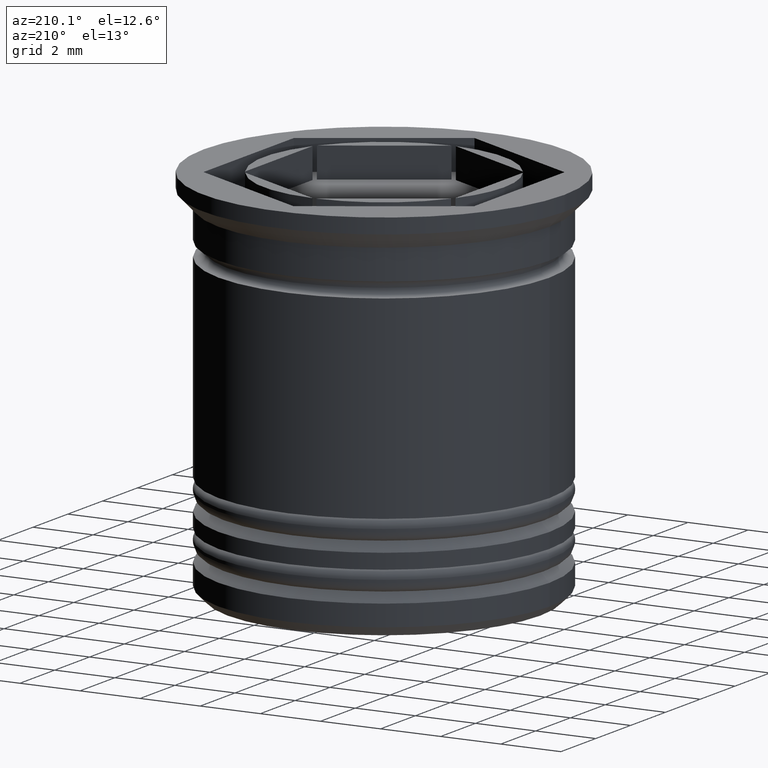
[diagram: clean part render]
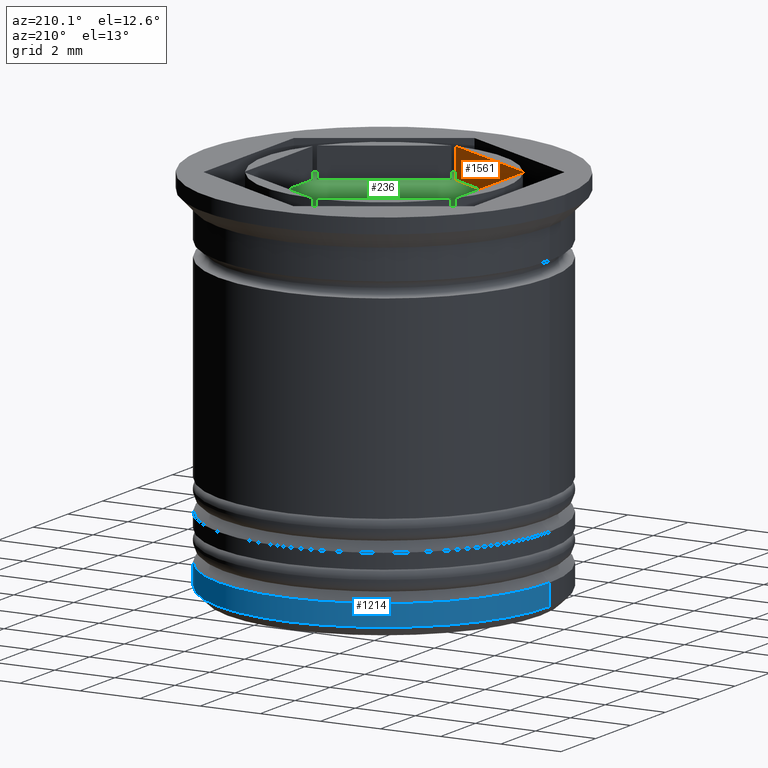
[diagram: same view with three faces highlighted in distinct colors, each labeled with its STEP entity id]
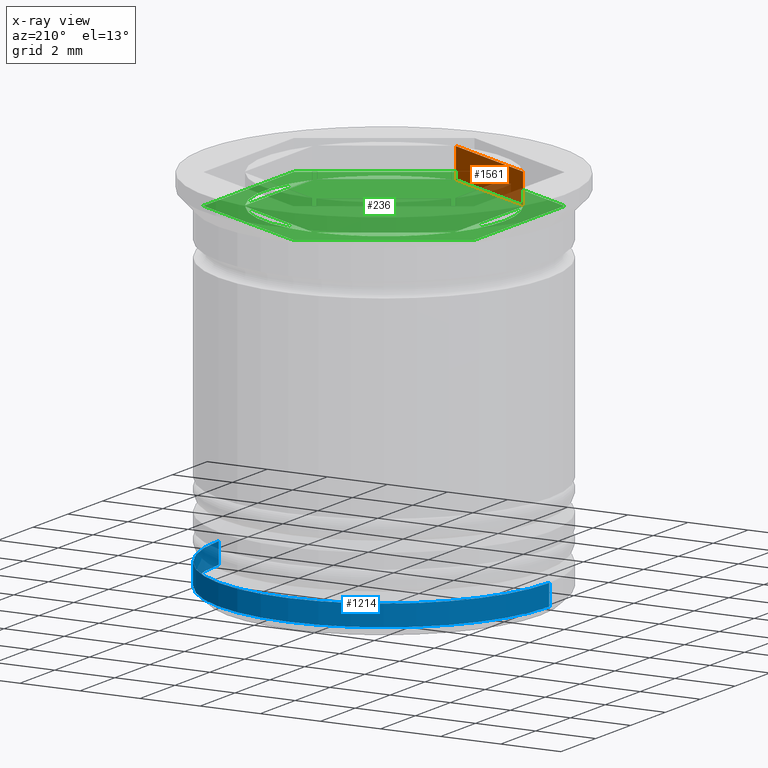
[diagram: x-ray of the same camera — body ghosted, the three highlighted faces saturated]
A machine part, auxiliary view with three faces highlighted in distinct colors.
The next image is the same camera in x-ray (body ghosted, the three faces saturated) — at least one of them is partly hidden behind the body in this view.
Their STEP definitions:

[orange] entity #1561 — the highlighted planar face has unit normal (-0.5, -0.866, 0).
#32 = EDGE_CURVE ( 'NONE', #1257, #59, #1673, .T. ) ;
#59 = VERTEX_POINT ( 'NONE', #583 ) ;
#275 = DIRECTION ( 'NONE',  ( 0.000000000000000000, 0.000000000000000000, 1.000000000000000000 ) ) ;
#341 = DIRECTION ( 'NONE',  ( -0.8660254037844387076, 0.5000000000000001110, 0.000000000000000000 ) ) ;
#406 = DIRECTION ( 'NONE',  ( -0.5000000000000001110, -0.8660254037844387076, 0.000000000000000000 ) ) ;
#513 = LINE ( 'NONE', #1285, #1769 ) ;
#575 = CARTESIAN_POINT ( 'NONE',  ( -0.07294901687515718824, -3.999334749797389232, 11.31370849898475761 ) ) ;
#583 = CARTESIAN_POINT ( 'NONE',  ( -0.07294901687515849276, -3.999334749797389232, 0.000000000000000000 ) ) ;
#589 = VECTOR ( 'NONE', #275, 1000.000000000000000 ) ;
#713 = ORIENTED_EDGE ( 'NONE', *, *, #32, .F. ) ;
#751 = PLANE ( 'NONE',  #1105 ) ;
#768 = CARTESIAN_POINT ( 'NONE',  ( -3.427050983124842354, -2.062843076693679834, 11.31370849898475761 ) ) ;
#812 = CARTESIAN_POINT ( 'NONE',  ( -3.427050983124841466, -2.062843076693681166, 0.000000000000000000 ) ) ;
#866 = EDGE_LOOP ( 'NONE', ( #1559, #713, #1429, #1347 ) ) ;
#898 = CARTESIAN_POINT ( 'NONE',  ( -3.499999999999999556, -2.020725942163690281, -11.69267662156362597 ) ) ;
#954 = CARTESIAN_POINT ( 'NONE',  ( -0.07294901687515892297, -3.999334749797390121, -1.000000000000000888 ) ) ;
#969 = DIRECTION ( 'NONE',  ( 0.8660254037844387076, -0.5000000000000001110, 0.000000000000000000 ) ) ;
#1059 = DIRECTION ( 'NONE',  ( -0.000000000000000000, -0.000000000000000000, -1.000000000000000000 ) ) ;
#1105 = AXIS2_PLACEMENT_3D ( 'NONE', #898, #406, #1964 ) ;
#1137 = CARTESIAN_POINT ( 'NONE',  ( -3.499999999999999556, -2.020725942163690281, -1.000000000000000888 ) ) ;
#1257 = VERTEX_POINT ( 'NONE', #954 ) ;
#1262 = EDGE_CURVE ( 'NONE', #1484, #1711, #1708, .T. ) ;
#1285 = CARTESIAN_POINT ( 'NONE',  ( -1.749999999999999778, -3.031088913245534755, 0.000000000000000000 ) ) ;
#1347 = ORIENTED_EDGE ( 'NONE', *, *, #1262, .F. ) ;
#1361 = EDGE_CURVE ( 'NONE', #1257, #1711, #1471, .T. ) ;
#1429 = ORIENTED_EDGE ( 'NONE', *, *, #1361, .T. ) ;
#1471 = LINE ( 'NONE', #1137, #1762 ) ;
#1484 = VERTEX_POINT ( 'NONE', #812 ) ;
#1559 = ORIENTED_EDGE ( 'NONE', *, *, #1885, .T. ) ;
#1561 = ADVANCED_FACE ( 'NONE', ( #1955 ), #751, .F. ) ;
#1673 = LINE ( 'NONE', #575, #589 ) ;
#1708 = LINE ( 'NONE', #768, #1852 ) ;
#1711 = VERTEX_POINT ( 'NONE', #1878 ) ;
#1762 = VECTOR ( 'NONE', #341, 999.9999999999998863 ) ;
#1769 = VECTOR ( 'NONE', #969, 999.9999999999998863 ) ;
#1852 = VECTOR ( 'NONE', #1059, 1000.000000000000000 ) ;
#1878 = CARTESIAN_POINT ( 'NONE',  ( -3.427050983124842354, -2.062843076693682498, -1.000000000000000888 ) ) ;
#1885 = EDGE_CURVE ( 'NONE', #1484, #59, #513, .T. ) ;
#1955 = FACE_OUTER_BOUND ( 'NONE', #866, .T. ) ;
#1964 = DIRECTION ( 'NONE',  ( 0.8660254037844385966, -0.5000000000000000000, 0.000000000000000000 ) ) ;

[blue] entity #1214 — the highlighted cylindrical surface (partial cylindrical patch) has radius 5.5 mm, axis along (-0, -0, 1).
#36 = CARTESIAN_POINT ( 'NONE',  ( 5.500000000000001776, 0.000000000000000000, -12.19999999999999574 ) ) ;
#43 = VERTEX_POINT ( 'NONE', #887 ) ;
#73 = DIRECTION ( 'NONE',  ( -0.000000000000000000, -0.000000000000000000, 1.000000000000000000 ) ) ;
#84 = LINE ( 'NONE', #1609, #934 ) ;
#120 = CARTESIAN_POINT ( 'NONE',  ( 5.500000000000001776, 0.000000000000000000, 0.000000000000000000 ) ) ;
#147 = CARTESIAN_POINT ( 'NONE',  ( 0.000000000000000000, 0.000000000000000000, -11.50000000000000533 ) ) ;
#149 = ORIENTED_EDGE ( 'NONE', *, *, #672, .T. ) ;
#294 = CIRCLE ( 'NONE', #326, 5.500000000000001776 ) ;
#301 = FACE_OUTER_BOUND ( 'NONE', #1584, .T. ) ;
#326 = AXIS2_PLACEMENT_3D ( 'NONE', #147, #607, #1386 ) ;
#332 = DIRECTION ( 'NONE',  ( -0.000000000000000000, -0.000000000000000000, 1.000000000000000000 ) ) ;
#370 = ORIENTED_EDGE ( 'NONE', *, *, #477, .F. ) ;
#431 = ORIENTED_EDGE ( 'NONE', *, *, #1749, .T. ) ;
#477 = EDGE_CURVE ( 'NONE', #1240, #43, #894, .T. ) ;
#559 = CIRCLE ( 'NONE', #817, 5.500000000000001776 ) ;
#607 = DIRECTION ( 'NONE',  ( 0.000000000000000000, 0.000000000000000000, -1.000000000000000000 ) ) ;
#620 = VERTEX_POINT ( 'NONE', #777 ) ;
#634 = CARTESIAN_POINT ( 'NONE',  ( 0.000000000000000000, 0.000000000000000000, 0.000000000000000000 ) ) ;
#672 = EDGE_CURVE ( 'NONE', #1907, #620, #84, .T. ) ;
#777 = CARTESIAN_POINT ( 'NONE',  ( -5.500000000000001776, 6.735557395310443995E-16, -11.50000000000000533 ) ) ;
#817 = AXIS2_PLACEMENT_3D ( 'NONE', #1331, #1023, #893 ) ;
#887 = CARTESIAN_POINT ( 'NONE',  ( 5.500000000000001776, 0.000000000000000000, -11.50000000000000533 ) ) ;
#893 = DIRECTION ( 'NONE',  ( -1.000000000000000000, 0.000000000000000000, 0.000000000000000000 ) ) ;
#894 = LINE ( 'NONE', #120, #1592 ) ;
#920 = DIRECTION ( 'NONE',  ( 1.000000000000000000, 0.000000000000000000, 0.000000000000000000 ) ) ;
#934 = VECTOR ( 'NONE', #73, 1000.000000000000000 ) ;
#1023 = DIRECTION ( 'NONE',  ( -0.000000000000000000, -0.000000000000000000, 1.000000000000000000 ) ) ;
#1027 = ORIENTED_EDGE ( 'NONE', *, *, #1512, .T. ) ;
#1212 = DIRECTION ( 'NONE',  ( -0.000000000000000000, -0.000000000000000000, 1.000000000000000000 ) ) ;
#1214 = ADVANCED_FACE ( 'NONE', ( #301 ), #1848, .T. ) ;
#1240 = VERTEX_POINT ( 'NONE', #36 ) ;
#1331 = CARTESIAN_POINT ( 'NONE',  ( 0.000000000000000000, 0.000000000000000000, -12.19999999999999574 ) ) ;
#1386 = DIRECTION ( 'NONE',  ( -1.000000000000000000, 0.000000000000000000, 0.000000000000000000 ) ) ;
#1433 = CARTESIAN_POINT ( 'NONE',  ( -5.500000000000001776, 6.735557395310443995E-16, -12.19999999999999574 ) ) ;
#1512 = EDGE_CURVE ( 'NONE', #1240, #1907, #559, .T. ) ;
#1584 = EDGE_LOOP ( 'NONE', ( #1027, #149, #431, #370 ) ) ;
#1592 = VECTOR ( 'NONE', #1212, 1000.000000000000000 ) ;
#1609 = CARTESIAN_POINT ( 'NONE',  ( -5.500000000000001776, 6.735557395310443995E-16, 0.000000000000000000 ) ) ;
#1749 = EDGE_CURVE ( 'NONE', #620, #43, #294, .T. ) ;
#1848 = CYLINDRICAL_SURFACE ( 'NONE', #1953, 5.500000000000001776 ) ;
#1907 = VERTEX_POINT ( 'NONE', #1433 ) ;
#1953 = AXIS2_PLACEMENT_3D ( 'NONE', #634, #332, #920 ) ;

[green] entity #236 — the highlighted planar face has unit normal (0, 0, 1).
#4 = FACE_BOUND ( 'NONE', #478, .T. ) ;
#5 = EDGE_LOOP ( 'NONE', ( #1591, #317 ) ) ;
#47 = VERTEX_POINT ( 'NONE', #129 ) ;
#55 = CARTESIAN_POINT ( 'NONE',  ( 4.500000000000000888, 2.598076211353317344, -1.000000000000000000 ) ) ;
#65 = CARTESIAN_POINT ( 'NONE',  ( -3.427050983124842798, 2.062843076693678501, -1.000000000000000888 ) ) ;
#91 = VECTOR ( 'NONE', #868, 1000.000000000000114 ) ;
#101 = EDGE_CURVE ( 'NONE', #1411, #438, #1201, .T. ) ;
#112 = EDGE_CURVE ( 'NONE', #764, #1750, #793, .T. ) ;
#118 = VECTOR ( 'NONE', #1719, 999.9999999999998863 ) ;
#129 = CARTESIAN_POINT ( 'NONE',  ( 3.427050983124842354, 2.062843076693681166, -1.000000000000000888 ) ) ;
#138 = CARTESIAN_POINT ( 'NONE',  ( 3.500000000000000000, 2.020725942163690281, -1.000000000000000888 ) ) ;
#140 = DIRECTION ( 'NONE',  ( 0.8660254037844385966, -0.5000000000000000000, 0.000000000000000000 ) ) ;
#142 = AXIS2_PLACEMENT_3D ( 'NONE', #196, #206, #217 ) ;
#152 = EDGE_CURVE ( 'NONE', #1750, #764, #361, .T. ) ;
#164 = AXIS2_PLACEMENT_3D ( 'NONE', #1535, #1873, #476 ) ;
#196 = CARTESIAN_POINT ( 'NONE',  ( 0.000000000000000000, 0.000000000000000000, -1.000000000000000000 ) ) ;
#205 = VERTEX_POINT ( 'NONE', #1417 ) ;
#206 = DIRECTION ( 'NONE',  ( 0.000000000000000000, 0.000000000000000000, 1.000000000000000000 ) ) ;
#217 = DIRECTION ( 'NONE',  ( 1.000000000000000000, 0.000000000000000000, 0.000000000000000000 ) ) ;
#236 = ADVANCED_FACE ( 'NONE', ( #623, #1382, #1523, #4, #446, #1228, #1849 ), #1242, .T. ) ;
#253 = EDGE_CURVE ( 'NONE', #770, #400, #1913, .T. ) ;
#262 = CIRCLE ( 'NONE', #1139, 4.000000000000000000 ) ;
#282 = VERTEX_POINT ( 'NONE', #1472 ) ;
#291 = VECTOR ( 'NONE', #1213, 1000.000000000000227 ) ;
#292 = DIRECTION ( 'NONE',  ( 1.000000000000000000, 0.000000000000000000, 0.000000000000000000 ) ) ;
#306 = CARTESIAN_POINT ( 'NONE',  ( -4.500000000000000888, -2.598076211353316456, -1.000000000000000000 ) ) ;
#308 = EDGE_LOOP ( 'NONE', ( #1123, #1462 ) ) ;
#317 = ORIENTED_EDGE ( 'NONE', *, *, #112, .F. ) ;
#329 = CARTESIAN_POINT ( 'NONE',  ( -3.499999999999999556, 2.020725942163689837, -1.000000000000000888 ) ) ;
#330 = CARTESIAN_POINT ( 'NONE',  ( 4.500000000000000888, -2.598076211353316012, -1.000000000000000000 ) ) ;
#334 = VERTEX_POINT ( 'NONE', #1895 ) ;
#335 = DIRECTION ( 'NONE',  ( 0.8660254037844387076, -0.4999999999999998335, 0.000000000000000000 ) ) ;
#341 = DIRECTION ( 'NONE',  ( -0.8660254037844387076, 0.5000000000000001110, 0.000000000000000000 ) ) ;
#342 = DIRECTION ( 'NONE',  ( -3.219245568722483850E-16, -1.000000000000000000, 0.000000000000000000 ) ) ;
#361 = CIRCLE ( 'NONE', #164, 4.000000000000000000 ) ;
#364 = DIRECTION ( 'NONE',  ( 0.000000000000000000, 0.000000000000000000, 1.000000000000000000 ) ) ;
#365 = CARTESIAN_POINT ( 'NONE',  ( 3.427050983124842354, -2.062843076693682498, -1.000000000000000888 ) ) ;
#400 = VERTEX_POINT ( 'NONE', #1956 ) ;
#411 = DIRECTION ( 'NONE',  ( 0.000000000000000000, 0.000000000000000000, 1.000000000000000000 ) ) ;
#412 = CARTESIAN_POINT ( 'NONE',  ( -3.394223061414856671E-17, -5.196152422706632912, -1.000000000000000000 ) ) ;
#429 = CIRCLE ( 'NONE', #1371, 4.000000000000000000 ) ;
#438 = VERTEX_POINT ( 'NONE', #710 ) ;
#446 = FACE_BOUND ( 'NONE', #1230, .T. ) ;
#468 = DIRECTION ( 'NONE',  ( 0.000000000000000000, 0.000000000000000000, 1.000000000000000000 ) ) ;
#470 = ORIENTED_EDGE ( 'NONE', *, *, #1991, .T. ) ;
#476 = DIRECTION ( 'NONE',  ( 1.000000000000000000, 0.000000000000000000, 0.000000000000000000 ) ) ;
#478 = EDGE_LOOP ( 'NONE', ( #1226, #1959 ) ) ;
#529 = AXIS2_PLACEMENT_3D ( 'NONE', #1594, #364, #1932 ) ;
#531 = CARTESIAN_POINT ( 'NONE',  ( -4.500000000000000888, 2.598076211353315568, -1.000000000000000000 ) ) ;
#546 = EDGE_LOOP ( 'NONE', ( #1489, #548 ) ) ;
#548 = ORIENTED_EDGE ( 'NONE', *, *, #101, .F. ) ;
#549 = EDGE_CURVE ( 'NONE', #1754, #334, #1521, .T. ) ;
#551 = DIRECTION ( 'NONE',  ( 0.8660254037844385966, 0.5000000000000001110, 0.000000000000000000 ) ) ;
#555 = CARTESIAN_POINT ( 'NONE',  ( -4.000000000000000000, 0.000000000000000000, -1.000000000000000000 ) ) ;
#563 = AXIS2_PLACEMENT_3D ( 'NONE', #673, #1774, #1738 ) ;
#570 = LINE ( 'NONE', #412, #1334 ) ;
#577 = CARTESIAN_POINT ( 'NONE',  ( 4.500000000000000888, 2.598076211353317344, -1.000000000000000000 ) ) ;
#598 = EDGE_LOOP ( 'NONE', ( #1178, #1922 ) ) ;
#623 = FACE_BOUND ( 'NONE', #308, .T. ) ;
#642 = EDGE_CURVE ( 'NONE', #205, #1754, #649, .T. ) ;
#649 = LINE ( 'NONE', #531, #1037 ) ;
#673 = CARTESIAN_POINT ( 'NONE',  ( 0.000000000000000000, 0.000000000000000000, -1.000000000000000000 ) ) ;
#675 = VERTEX_POINT ( 'NONE', #55 ) ;
#692 = VERTEX_POINT ( 'NONE', #1286 ) ;
#702 = EDGE_CURVE ( 'NONE', #282, #675, #799, .T. ) ;
#710 = CARTESIAN_POINT ( 'NONE',  ( -0.07294901687515480126, 3.999334749797389232, -1.000000000000000888 ) ) ;
#711 = ORIENTED_EDGE ( 'NONE', *, *, #1481, .T. ) ;
#764 = VERTEX_POINT ( 'NONE', #365 ) ;
#770 = VERTEX_POINT ( 'NONE', #985 ) ;
#793 = LINE ( 'NONE', #943, #118 ) ;
#799 = LINE ( 'NONE', #330, #1007 ) ;
#829 = EDGE_CURVE ( 'NONE', #334, #282, #570, .T. ) ;
#834 = DIRECTION ( 'NONE',  ( -0.8660254037844384856, -0.5000000000000001110, 0.000000000000000000 ) ) ;
#868 = DIRECTION ( 'NONE',  ( -0.8660254037844387076, 0.4999999999999998335, 0.000000000000000000 ) ) ;
#878 = EDGE_CURVE ( 'NONE', #1691, #47, #1517, .T. ) ;
#889 = ORIENTED_EDGE ( 'NONE', *, *, #1859, .F. ) ;
#943 = CARTESIAN_POINT ( 'NONE',  ( -2.168404344971008868E-16, -4.041451884327380562, -1.000000000000000888 ) ) ;
#954 = CARTESIAN_POINT ( 'NONE',  ( -0.07294901687515892297, -3.999334749797390121, -1.000000000000000888 ) ) ;
#984 = CARTESIAN_POINT ( 'NONE',  ( 0.000000000000000000, 0.000000000000000000, -1.000000000000000000 ) ) ;
#985 = CARTESIAN_POINT ( 'NONE',  ( 3.500000000000000000, 1.936491673103707845, -1.000000000000000888 ) ) ;
#1001 = ORIENTED_EDGE ( 'NONE', *, *, #1467, .F. ) ;
#1003 = DIRECTION ( 'NONE',  ( 0.000000000000000000, 0.000000000000000000, 1.000000000000000000 ) ) ;
#1007 = VECTOR ( 'NONE', #1748, 1000.000000000000000 ) ;
#1037 = VECTOR ( 'NONE', #1102, 1000.000000000000000 ) ;
#1071 = CARTESIAN_POINT ( 'NONE',  ( -4.500000000000000888, -2.598076211353316456, -1.000000000000000000 ) ) ;
#1085 = DIRECTION ( 'NONE',  ( 1.000000000000000000, 0.000000000000000000, -0.000000000000000000 ) ) ;
#1102 = DIRECTION ( 'NONE',  ( 0.000000000000000000, -1.000000000000000000, 0.000000000000000000 ) ) ;
#1123 = ORIENTED_EDGE ( 'NONE', *, *, #1862, .F. ) ;
#1137 = CARTESIAN_POINT ( 'NONE',  ( -3.499999999999999556, -2.020725942163690281, -1.000000000000000888 ) ) ;
#1139 = AXIS2_PLACEMENT_3D ( 'NONE', #1425, #1688, #292 ) ;
#1161 = VERTEX_POINT ( 'NONE', #555 ) ;
#1175 = VECTOR ( 'NONE', #834, 1000.000000000000227 ) ;
#1176 = VECTOR ( 'NONE', #342, 1000.000000000000000 ) ;
#1178 = ORIENTED_EDGE ( 'NONE', *, *, #1297, .F. ) ;
#1201 = LINE ( 'NONE', #1363, #291 ) ;
#1207 = DIRECTION ( 'NONE',  ( 1.000000000000000000, 0.000000000000000000, 0.000000000000000000 ) ) ;
#1213 = DIRECTION ( 'NONE',  ( 0.8660254037844385966, 0.4999999999999998890, -0.000000000000000000 ) ) ;
#1215 = VERTEX_POINT ( 'NONE', #1389 ) ;
#1226 = ORIENTED_EDGE ( 'NONE', *, *, #1871, .F. ) ;
#1228 = FACE_BOUND ( 'NONE', #546, .T. ) ;
#1230 = EDGE_LOOP ( 'NONE', ( #1001, #1851, #889 ) ) ;
#1231 = VECTOR ( 'NONE', #140, 1000.000000000000227 ) ;
#1242 = PLANE ( 'NONE',  #1400 ) ;
#1255 = CARTESIAN_POINT ( 'NONE',  ( 0.07294901687515632782, 3.999334749797389232, -1.000000000000000888 ) ) ;
#1257 = VERTEX_POINT ( 'NONE', #954 ) ;
#1286 = CARTESIAN_POINT ( 'NONE',  ( 0.000000000000000000, 5.196152422706632912, -1.000000000000000000 ) ) ;
#1289 = CARTESIAN_POINT ( 'NONE',  ( 0.000000000000000000, 5.196152422706632912, -1.000000000000000000 ) ) ;
#1297 = EDGE_CURVE ( 'NONE', #400, #770, #262, .T. ) ;
#1302 = LINE ( 'NONE', #1289, #1175 ) ;
#1334 = VECTOR ( 'NONE', #551, 1000.000000000000000 ) ;
#1361 = EDGE_CURVE ( 'NONE', #1257, #1711, #1471, .T. ) ;
#1363 = CARTESIAN_POINT ( 'NONE',  ( 0.000000000000000000, 4.041451884327379673, -1.000000000000000888 ) ) ;
#1371 = AXIS2_PLACEMENT_3D ( 'NONE', #984, #1003, #1628 ) ;
#1382 = FACE_BOUND ( 'NONE', #598, .T. ) ;
#1389 = CARTESIAN_POINT ( 'NONE',  ( -3.499999999999999556, -1.936491673103708955, -1.000000000000000888 ) ) ;
#1400 = AXIS2_PLACEMENT_3D ( 'NONE', #1864, #468, #1085 ) ;
#1403 = DIRECTION ( 'NONE',  ( 0.000000000000000000, 1.000000000000000000, 0.000000000000000000 ) ) ;
#1406 = AXIS2_PLACEMENT_3D ( 'NONE', #1490, #411, #1207 ) ;
#1411 = VERTEX_POINT ( 'NONE', #65 ) ;
#1417 = CARTESIAN_POINT ( 'NONE',  ( -4.500000000000000888, 2.598076211353315568, -1.000000000000000000 ) ) ;
#1425 = CARTESIAN_POINT ( 'NONE',  ( 0.000000000000000000, 0.000000000000000000, -1.000000000000000000 ) ) ;
#1438 = CIRCLE ( 'NONE', #563, 4.000000000000000000 ) ;
#1462 = ORIENTED_EDGE ( 'NONE', *, *, #878, .F. ) ;
#1467 = EDGE_CURVE ( 'NONE', #1740, #1161, #1632, .T. ) ;
#1469 = ORIENTED_EDGE ( 'NONE', *, *, #702, .T. ) ;
#1471 = LINE ( 'NONE', #1137, #1762 ) ;
#1472 = CARTESIAN_POINT ( 'NONE',  ( 4.500000000000000888, -2.598076211353316012, -1.000000000000000000 ) ) ;
#1481 = EDGE_CURVE ( 'NONE', #692, #205, #1302, .T. ) ;
#1489 = ORIENTED_EDGE ( 'NONE', *, *, #1937, .F. ) ;
#1490 = CARTESIAN_POINT ( 'NONE',  ( 0.000000000000000000, 0.000000000000000000, -1.000000000000000000 ) ) ;
#1517 = LINE ( 'NONE', #138, #1887 ) ;
#1521 = LINE ( 'NONE', #1071, #1231 ) ;
#1523 = FACE_BOUND ( 'NONE', #5, .T. ) ;
#1531 = CARTESIAN_POINT ( 'NONE',  ( -3.499999999999999556, 1.936491673103708955, -1.000000000000000888 ) ) ;
#1535 = CARTESIAN_POINT ( 'NONE',  ( 0.000000000000000000, 0.000000000000000000, -1.000000000000000000 ) ) ;
#1591 = ORIENTED_EDGE ( 'NONE', *, *, #152, .F. ) ;
#1594 = CARTESIAN_POINT ( 'NONE',  ( 0.000000000000000000, 0.000000000000000000, -1.000000000000000000 ) ) ;
#1628 = DIRECTION ( 'NONE',  ( 1.000000000000000000, 0.000000000000000000, 0.000000000000000000 ) ) ;
#1632 = CIRCLE ( 'NONE', #142, 4.000000000000000000 ) ;
#1649 = EDGE_CURVE ( 'NONE', #1215, #1740, #1868, .T. ) ;
#1688 = DIRECTION ( 'NONE',  ( 0.000000000000000000, 0.000000000000000000, 1.000000000000000000 ) ) ;
#1691 = VERTEX_POINT ( 'NONE', #1255 ) ;
#1694 = CIRCLE ( 'NONE', #529, 4.000000000000000000 ) ;
#1707 = ORIENTED_EDGE ( 'NONE', *, *, #829, .T. ) ;
#1711 = VERTEX_POINT ( 'NONE', #1878 ) ;
#1717 = ORIENTED_EDGE ( 'NONE', *, *, #642, .T. ) ;
#1719 = DIRECTION ( 'NONE',  ( -0.8660254037844387076, -0.5000000000000001110, 0.000000000000000000 ) ) ;
#1738 = DIRECTION ( 'NONE',  ( 1.000000000000000000, 0.000000000000000000, 0.000000000000000000 ) ) ;
#1740 = VERTEX_POINT ( 'NONE', #1531 ) ;
#1748 = DIRECTION ( 'NONE',  ( 0.000000000000000000, 1.000000000000000000, 0.000000000000000000 ) ) ;
#1750 = VERTEX_POINT ( 'NONE', #1843 ) ;
#1754 = VERTEX_POINT ( 'NONE', #306 ) ;
#1762 = VECTOR ( 'NONE', #341, 999.9999999999998863 ) ;
#1774 = DIRECTION ( 'NONE',  ( 0.000000000000000000, 0.000000000000000000, 1.000000000000000000 ) ) ;
#1789 = ORIENTED_EDGE ( 'NONE', *, *, #549, .T. ) ;
#1830 = LINE ( 'NONE', #577, #91 ) ;
#1843 = CARTESIAN_POINT ( 'NONE',  ( 0.07294901687515892297, -3.999334749797390121, -1.000000000000000888 ) ) ;
#1849 = FACE_OUTER_BOUND ( 'NONE', #1902, .T. ) ;
#1851 = ORIENTED_EDGE ( 'NONE', *, *, #1649, .F. ) ;
#1856 = CIRCLE ( 'NONE', #1406, 4.000000000000000000 ) ;
#1859 = EDGE_CURVE ( 'NONE', #1161, #1215, #1438, .T. ) ;
#1862 = EDGE_CURVE ( 'NONE', #47, #1691, #1694, .T. ) ;
#1864 = CARTESIAN_POINT ( 'NONE',  ( 0.000000000000000000, 0.000000000000000000, -1.000000000000000000 ) ) ;
#1868 = LINE ( 'NONE', #329, #1890 ) ;
#1871 = EDGE_CURVE ( 'NONE', #1711, #1257, #429, .T. ) ;
#1873 = DIRECTION ( 'NONE',  ( 0.000000000000000000, 0.000000000000000000, 1.000000000000000000 ) ) ;
#1878 = CARTESIAN_POINT ( 'NONE',  ( -3.427050983124842354, -2.062843076693682498, -1.000000000000000888 ) ) ;
#1887 = VECTOR ( 'NONE', #335, 1000.000000000000114 ) ;
#1890 = VECTOR ( 'NONE', #1403, 1000.000000000000000 ) ;
#1895 = CARTESIAN_POINT ( 'NONE',  ( -3.394223061414856671E-17, -5.196152422706632912, -1.000000000000000000 ) ) ;
#1902 = EDGE_LOOP ( 'NONE', ( #470, #711, #1717, #1789, #1707, #1469 ) ) ;
#1904 = CARTESIAN_POINT ( 'NONE',  ( 3.499999999999998668, -2.020725942163690725, -1.000000000000000888 ) ) ;
#1913 = LINE ( 'NONE', #1904, #1176 ) ;
#1922 = ORIENTED_EDGE ( 'NONE', *, *, #253, .F. ) ;
#1932 = DIRECTION ( 'NONE',  ( 1.000000000000000000, 0.000000000000000000, 0.000000000000000000 ) ) ;
#1937 = EDGE_CURVE ( 'NONE', #438, #1411, #1856, .T. ) ;
#1956 = CARTESIAN_POINT ( 'NONE',  ( 3.499999999999999112, -1.936491673103710065, -1.000000000000000888 ) ) ;
#1959 = ORIENTED_EDGE ( 'NONE', *, *, #1361, .F. ) ;
#1991 = EDGE_CURVE ( 'NONE', #675, #692, #1830, .T. ) ;